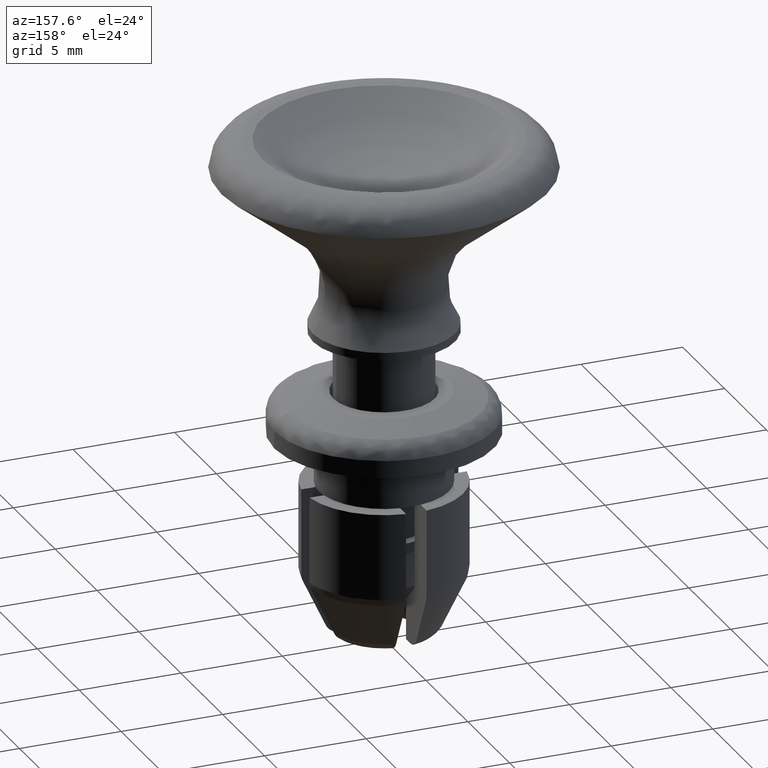
[diagram: clean part render]
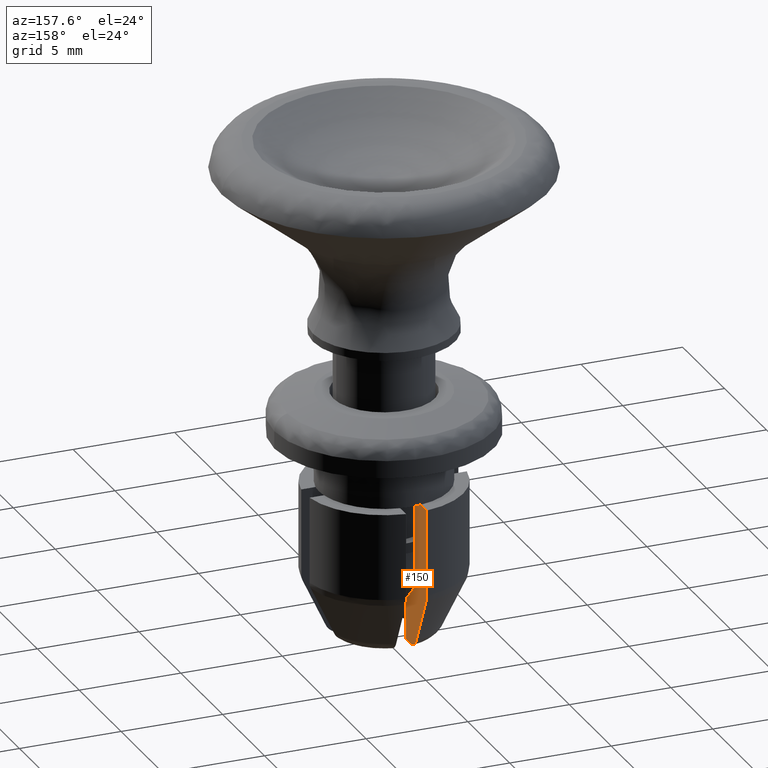
[diagram: same view with one face highlighted and labeled with its STEP entity id]
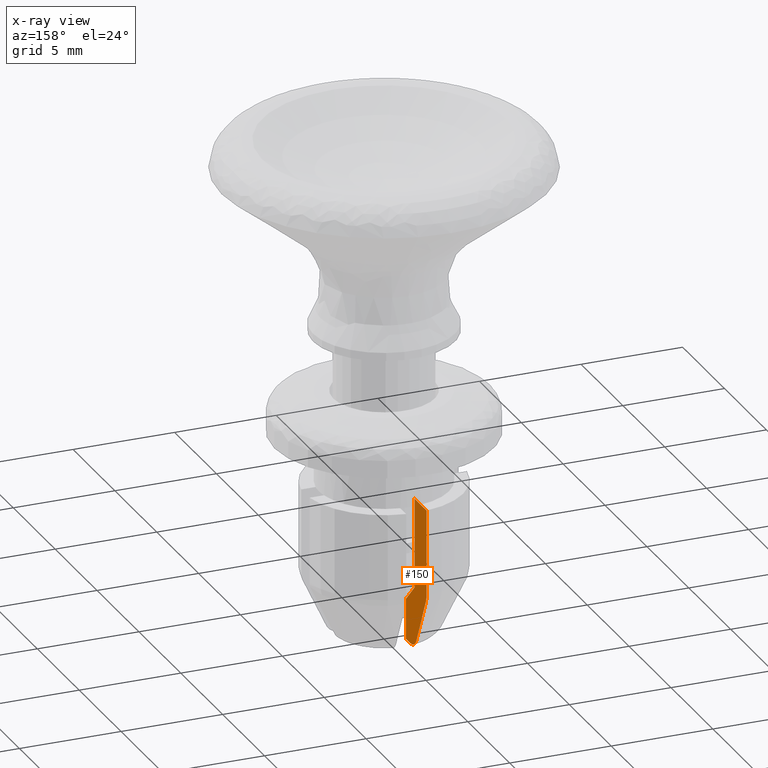
[diagram: x-ray of the same camera — body ghosted, the highlighted face saturated]
A machine part, auxiliary view. The second image highlights one B-rep face of the part: STEP entity #150.
The next image is the same camera in x-ray: the body ghosted, the highlighted face saturated — about 0% of this face is hidden behind the body in this view.
In plain terms, the highlighted planar face has unit normal (1, 0, 0).
Its self-contained STEP definition (entity closure, byte-faithful):
#150=ADVANCED_FACE('',(#578),#577,.T.);
#577=PLANE('',#1300);
#578=FACE_OUTER_BOUND('',#1301,.T.);
#1297=CARTESIAN_POINT('',(-5.00000000000E-01,1.16894672305E+00,-3.75997000000E+00));
#1298=DIRECTION('',(1.00000000000E+00,0.00000000000E+00,0.00000000000E+00));
#1299=DIRECTION('',(0.00000000000E+00,0.00000000000E+00,-1.00000000000E+00));
#1300=AXIS2_PLACEMENT_3D('',#1297,#1298,#1299);
#1301=EDGE_LOOP('',(#1878,#1879,#1880,#1881,#1882,#1883,#1884,#1885,#1886,#1887));
#1878=ORIENTED_EDGE('',*,*,#2224,.F.);
#1879=ORIENTED_EDGE('',*,*,#2225,.T.);
#1880=ORIENTED_EDGE('',*,*,#2226,.T.);
#1881=ORIENTED_EDGE('',*,*,#2144,.F.);
#1882=ORIENTED_EDGE('',*,*,#2207,.T.);
#1883=ORIENTED_EDGE('',*,*,#2130,.T.);
#1884=ORIENTED_EDGE('',*,*,#2197,.T.);
#1885=ORIENTED_EDGE('',*,*,#2116,.T.);
#1886=ORIENTED_EDGE('',*,*,#2220,.T.);
#1887=ORIENTED_EDGE('',*,*,#2213,.F.);
#2116=EDGE_CURVE('',#2402,#2403,#2404,.T.);
#2130=EDGE_CURVE('',#2500,#2501,#2502,.T.);
#2144=EDGE_CURVE('',#2596,#2597,#2598,.T.);
#2197=EDGE_CURVE('',#2501,#2402,#2954,.T.);
#2207=EDGE_CURVE('',#2596,#2500,#3016,.T.);
#2213=EDGE_CURVE('',#3054,#3055,#3056,.T.);
#2220=EDGE_CURVE('',#2403,#3055,#3099,.T.);
#2224=EDGE_CURVE('',#3123,#3054,#3124,.T.);
#2225=EDGE_CURVE('',#3123,#3130,#3131,.T.);
#2226=EDGE_CURVE('',#3130,#2597,#3137,.T.);
#2402=VERTEX_POINT('',#3711);
#2403=VERTEX_POINT('',#3712);
#2404=(BOUNDED_CURVE() B_SPLINE_CURVE(3,(#3713,#3714,#3715,#3716,#3717,#3718),.UNSPECIFIED.,.F.,.F.) B_SPLINE_CURVE_WITH_KNOTS((4,2,4),(1.86324909117E-03,2.02641197676E-03,2.18957486235E-03),.UNSPECIFIED.) CURVE() GEOMETRIC_REPRESENTATION_ITEM() RATIONAL_B_SPLINE_CURVE((1.00000000000E+00,1.00000000000E+00,1.00000000000E+00,1.00000000000E+00,1.00000000000E+00,1.00000000000E+00)) REPRESENTATION_ITEM('') );
#2500=VERTEX_POINT('',#3783);
#2501=VERTEX_POINT('',#3784);
#2502=(BOUNDED_CURVE() B_SPLINE_CURVE(3,(#3785,#3786,#3787,#3788,#3789,#3790),.UNSPECIFIED.,.F.,.F.) B_SPLINE_CURVE_WITH_KNOTS((4,2,4),(6.61370178721E-04,1.09648787979E-03,1.53160558085E-03),.UNSPECIFIED.) CURVE() GEOMETRIC_REPRESENTATION_ITEM() RATIONAL_B_SPLINE_CURVE((1.00000000000E+00,1.00000000000E+00,1.00000000000E+00,1.00000000000E+00,1.00000000000E+00,1.00000000000E+00)) REPRESENTATION_ITEM('') );
#2596=VERTEX_POINT('',#3853);
#2597=VERTEX_POINT('',#3854);
#2598=LINE('',#3855,#3856);
#2954=(BOUNDED_CURVE() B_SPLINE_CURVE(3,(#4106,#4107,#4108,#4109),.UNSPECIFIED.,.F.,.F.) B_SPLINE_CURVE_WITH_KNOTS((4,4),(3.59600571184E-03,6.25887595562E-03),.UNSPECIFIED.) CURVE() GEOMETRIC_REPRESENTATION_ITEM() RATIONAL_B_SPLINE_CURVE((1.00000000000E+00,1.00000000000E+00,1.00000000000E+00,1.00000000000E+00)) REPRESENTATION_ITEM('') );
#3016=LINE('',#4148,#4149);
#3054=VERTEX_POINT('',#4168);
#3055=VERTEX_POINT('',#4169);
#3056=LINE('',#4170,#4171);
#3099=LINE('',#4196,#4197);
#3123=VERTEX_POINT('',#4209);
#3124=LINE('',#4210,#4211);
#3130=VERTEX_POINT('',#4213);
#3131=LINE('',#4214,#4215);
#3137=(BOUNDED_CURVE() B_SPLINE_CURVE(3,(#4217,#4218,#4219,#4220),.UNSPECIFIED.,.F.,.F.) B_SPLINE_CURVE_WITH_KNOTS((4,4),(6.51346346597E-04,2.09060161537E-03),.UNSPECIFIED.) CURVE() GEOMETRIC_REPRESENTATION_ITEM() RATIONAL_B_SPLINE_CURVE((1.00000000000E+00,1.00000000000E+00,1.00000000000E+00,1.00000000000E+00)) REPRESENTATION_ITEM('') );
#3711=CARTESIAN_POINT('',(-5.00000000000E-01,3.79692007949E+00,-9.05100000000E+00));
#3712=CARTESIAN_POINT('',(-5.00000000000E-01,3.86781592116E+00,-8.73390000000E+00));
#3713=CARTESIAN_POINT('',(-5.00000000000E-01,3.79692007949E+00,-9.05100000000E+00));
#3714=CARTESIAN_POINT('',(-5.00000000000E-01,3.82012529799E+00,-9.00170219190E+00));
#3715=CARTESIAN_POINT('',(-5.00000000000E-01,3.83783946449E+00,-8.95022078671E+00));
#3716=CARTESIAN_POINT('',(-5.00000000000E-01,3.86189560485E+00,-8.84273565776E+00));
#3717=CARTESIAN_POINT('',(-5.00000000000E-01,3.86783276955E+00,-8.78833433771E+00));
#3718=CARTESIAN_POINT('',(-5.00000000000E-01,3.86781592116E+00,-8.73390000000E+00));
#3783=CARTESIAN_POINT('',(-5.00000000000E-01,1.95961775865E+00,-1.19003000000E+01));
#3784=CARTESIAN_POINT('',(-5.00000000000E-01,2.65942644146E+00,-1.14587841873E+01));
#3785=CARTESIAN_POINT('',(-5.00000000000E-01,1.95961775865E+00,-1.19003000000E+01));
#3786=CARTESIAN_POINT('',(-5.00000000000E-01,2.10462776740E+00,-1.19003000000E+01));
#3787=CARTESIAN_POINT('',(-5.00000000000E-01,2.25023771116E+00,-1.18598918269E+01));
#3788=CARTESIAN_POINT('',(-5.00000000000E-01,2.49893683128E+00,-1.17041577249E+01));
#3789=CARTESIAN_POINT('',(-5.00000000000E-01,2.59867208575E+00,-1.15911014994E+01));
#3790=CARTESIAN_POINT('',(-5.00000000000E-01,2.65942644146E+00,-1.14587841873E+01));
#3853=CARTESIAN_POINT('',(-5.00000000000E-01,1.41430000000E+00,-1.19003000000E+01));
#3854=CARTESIAN_POINT('',(-5.00000000000E-01,1.41430000000E+00,-9.90028188233E+00));
#3855=CARTESIAN_POINT('',(-5.00000000000E-01,1.41430000000E+00,-1.19003000000E+01));
#3856=VECTOR('',#3857,2.00001811767E+00);
#3857=DIRECTION('',(0.00000000000E+00,0.00000000000E+00,1.00000000000E+00));
#4106=CARTESIAN_POINT('',(-5.00000000000E-01,2.65942644146E+00,-1.14587841873E+01));
#4107=CARTESIAN_POINT('',(-5.00000000000E-01,3.04018898643E+00,-1.06569467916E+01));
#4108=CARTESIAN_POINT('',(-5.00000000000E-01,3.41887766359E+00,-9.85412376575E+00));
#4109=CARTESIAN_POINT('',(-5.00000000000E-01,3.79692007949E+00,-9.05100000000E+00));
#4148=CARTESIAN_POINT('',(-5.00000000000E-01,1.41430000000E+00,-1.19003000000E+01));
#4149=VECTOR('',#4150,5.45317758646E-01);
#4150=DIRECTION('',(0.00000000000E+00,1.00000000000E+00,0.00000000000E+00));
#4168=CARTESIAN_POINT('',(-5.00000000000E-01,3.16069612586E+00,-4.50000000000E+00));
#4169=CARTESIAN_POINT('',(-5.00000000000E-01,3.86781592116E+00,-4.50000000000E+00));
#4170=CARTESIAN_POINT('',(-5.00000000000E-01,3.16069612586E+00,-4.50000000000E+00));
#4171=VECTOR('',#4172,7.07119795307E-01);
#4172=DIRECTION('',(0.00000000000E+00,1.00000000000E+00,0.00000000000E+00));
#4196=CARTESIAN_POINT('',(-5.00000000000E-01,3.86781592116E+00,-8.73390000000E+00));
#4197=VECTOR('',#4198,4.23390000000E+00);
#4198=DIRECTION('',(0.00000000000E+00,0.00000000000E+00,1.00000000000E+00));
#4209=CARTESIAN_POINT('',(-5.00000000000E-01,2.44948974278E+00,-4.50000000000E+00));
#4210=CARTESIAN_POINT('',(-5.00000000000E-01,2.44948974278E+00,-4.50000000000E+00));
#4211=VECTOR('',#4212,7.11206383073E-01);
#4212=DIRECTION('',(0.00000000000E+00,1.00000000000E+00,0.00000000000E+00));
#4213=CARTESIAN_POINT('',(-5.00000000000E-01,2.44948974278E+00,-8.90036337678E+00));
#4214=CARTESIAN_POINT('',(-5.00000000000E-01,2.44948974278E+00,-4.50000000000E+00));
#4215=VECTOR('',#4216,4.40036337678E+00);
#4216=DIRECTION('',(0.00000000000E+00,0.00000000000E+00,-1.00000000000E+00));
#4217=CARTESIAN_POINT('',(-5.00000000000E-01,2.44948974278E+00,-8.90036337678E+00));
#4218=CARTESIAN_POINT('',(-5.00000000000E-01,2.10680815515E+00,-9.23612139036E+00));
#4219=CARTESIAN_POINT('',(-5.00000000000E-01,1.76336938123E+00,-9.57117387874E+00));
#4220=CARTESIAN_POINT('',(-5.00000000000E-01,1.41430000000E+00,-9.90028188233E+00));